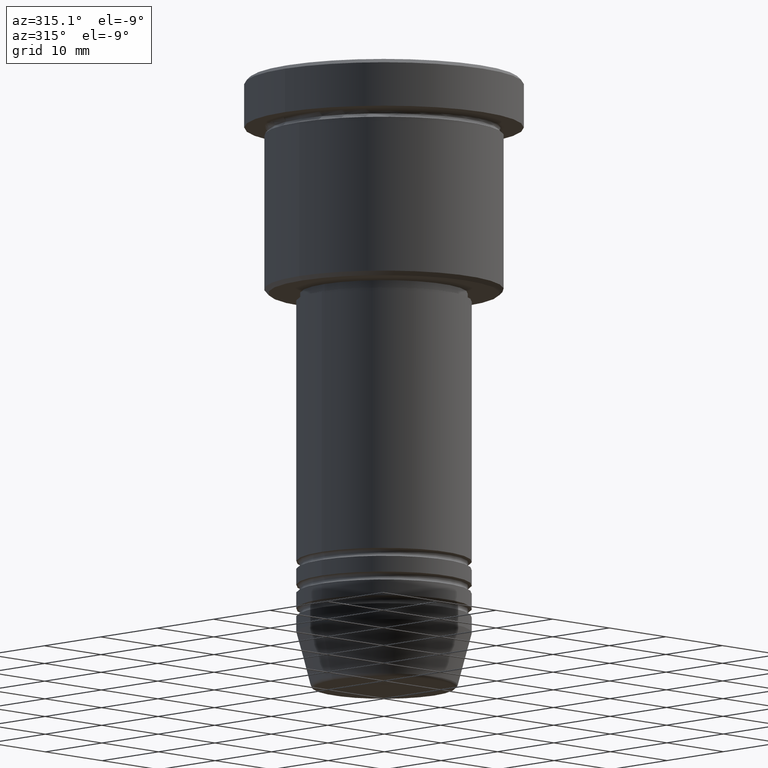
[diagram: clean part render]
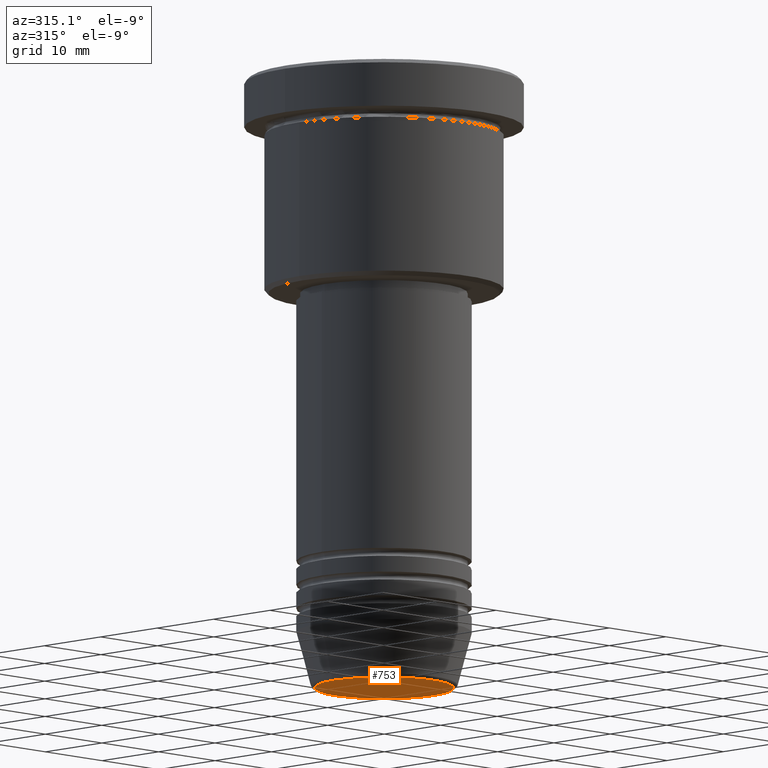
[diagram: same view with one face highlighted and labeled with its STEP entity id]
A machine part, auxiliary view. The second image highlights one B-rep face of the part: STEP entity #753.
In plain terms, the highlighted planar face has unit normal (0, -0, 1).
Its self-contained STEP definition (entity closure, byte-faithful):
#97 = CIRCLE ( 'NONE', #250, 8.740692158992652949 ) ;
#134 = ORIENTED_EDGE ( 'NONE', *, *, #1028, .T. ) ;
#184 = VERTEX_POINT ( 'NONE', #1150 ) ;
#196 = DIRECTION ( 'NONE',  ( 0.000000000000000000, 0.000000000000000000, -1.000000000000000000 ) ) ;
#220 = EDGE_CURVE ( 'NONE', #1015, #184, #97, .T. ) ;
#240 = DIRECTION ( 'NONE',  ( 0.000000000000000000, 0.000000000000000000, -1.000000000000000000 ) ) ;
#250 = AXIS2_PLACEMENT_3D ( 'NONE', #1039, #240, #576 ) ;
#294 = DIRECTION ( 'NONE',  ( 1.000000000000000000, 0.000000000000000000, 0.000000000000000000 ) ) ;
#318 = DIRECTION ( 'NONE',  ( 1.000000000000000000, 0.000000000000000000, 0.000000000000000000 ) ) ;
#373 = ORIENTED_EDGE ( 'NONE', *, *, #220, .T. ) ;
#495 = AXIS2_PLACEMENT_3D ( 'NONE', #975, #520, #318 ) ;
#520 = DIRECTION ( 'NONE',  ( 0.000000000000000000, -0.000000000000000000, 1.000000000000000000 ) ) ;
#576 = DIRECTION ( 'NONE',  ( 1.000000000000000000, 0.000000000000000000, 0.000000000000000000 ) ) ;
#598 = EDGE_LOOP ( 'NONE', ( #134, #373 ) ) ;
#604 = PLANE ( 'NONE',  #495 ) ;
#639 = CARTESIAN_POINT ( 'NONE',  ( -8.740692158992652949, 1.099999016768739259E-15, -77.00000000000001421 ) ) ;
#753 = ADVANCED_FACE ( 'NONE', ( #1139 ), #604, .F. ) ;
#975 = CARTESIAN_POINT ( 'NONE',  ( 0.000000000000000000, 0.000000000000000000, -77.00000000000001421 ) ) ;
#994 = AXIS2_PLACEMENT_3D ( 'NONE', #1099, #196, #294 ) ;
#1015 = VERTEX_POINT ( 'NONE', #639 ) ;
#1028 = EDGE_CURVE ( 'NONE', #184, #1015, #1155, .T. ) ;
#1039 = CARTESIAN_POINT ( 'NONE',  ( 0.000000000000000000, 0.000000000000000000, -77.00000000000001421 ) ) ;
#1099 = CARTESIAN_POINT ( 'NONE',  ( 0.000000000000000000, 0.000000000000000000, -77.00000000000001421 ) ) ;
#1139 = FACE_OUTER_BOUND ( 'NONE', #598, .T. ) ;
#1150 = CARTESIAN_POINT ( 'NONE',  ( 8.740692158992652949, 0.000000000000000000, -77.00000000000001421 ) ) ;
#1155 = CIRCLE ( 'NONE', #994, 8.740692158992652949 ) ;